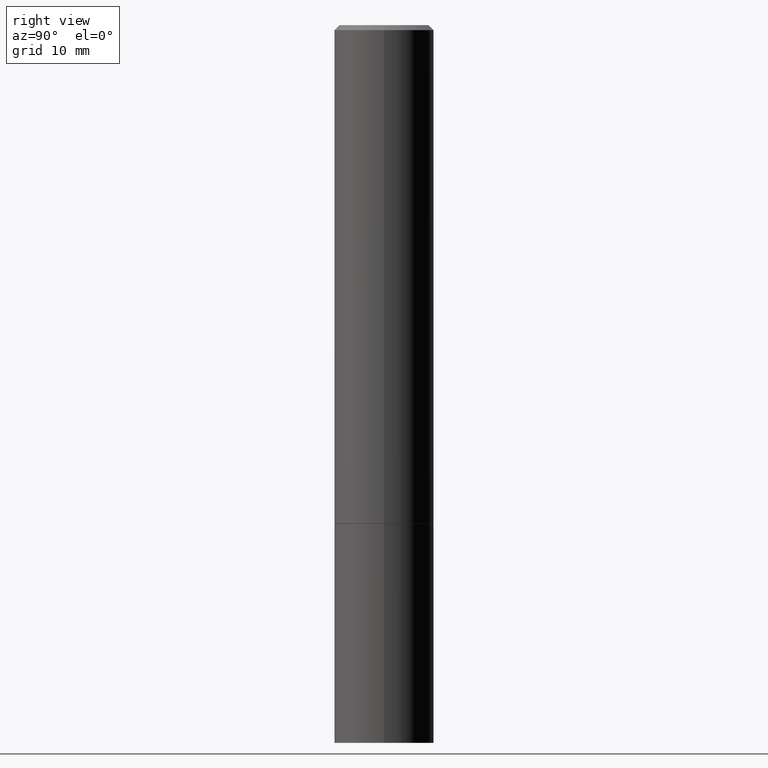
[diagram: clean part render]
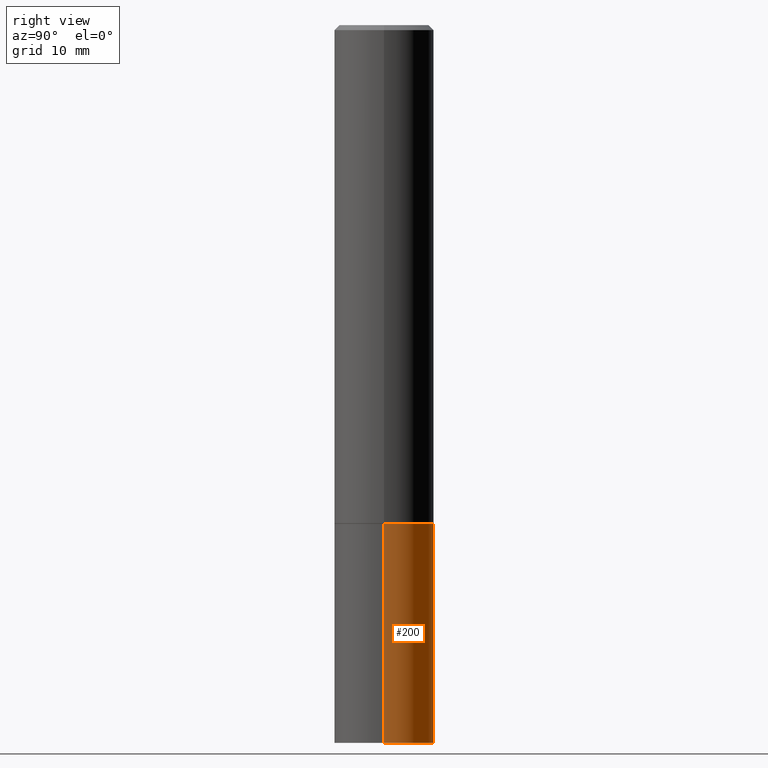
[diagram: same view with one face highlighted and labeled with its STEP entity id]
A machine part, right view. The second image highlights one B-rep face of the part: STEP entity #200.
In plain terms, the highlighted cylindrical surface (partial cylindrical patch) has radius 5 mm, axis along (-0, 0, 1).
Its self-contained STEP definition (entity closure, byte-faithful):
#13 = VERTEX_POINT ( 'NONE', #98 ) ;
#30 = ORIENTED_EDGE ( 'NONE', *, *, #74, .F. ) ;
#40 = CARTESIAN_POINT ( 'NONE',  ( 4.813905344975441835E-29, -6.872981015512731707E-15, -1.968500000000000139 ) ) ;
#41 = AXIS2_PLACEMENT_3D ( 'NONE', #160, #109, #194 ) ;
#47 = CARTESIAN_POINT ( 'NONE',  ( -0.1968500000000000250, -6.986263633954999297E-15, -1.968500000000000139 ) ) ;
#71 = AXIS2_PLACEMENT_3D ( 'NONE', #40, #357, #123 ) ;
#74 = EDGE_CURVE ( 'NONE', #113, #294, #185, .T. ) ;
#80 = DIRECTION ( 'NONE',  ( -2.445468806185136597E-29, 3.491481338843145583E-15, 1.000000000000000000 ) ) ;
#89 = CARTESIAN_POINT ( 'NONE',  ( -0.1968500000000000250, -6.986263633954999297E-15, -2.834600000000000009 ) ) ;
#92 = ORIENTED_EDGE ( 'NONE', *, *, #359, .F. ) ;
#98 = CARTESIAN_POINT ( 'NONE',  ( 0.1968500000000000250, -1.127154920618732249E-14, -2.834600000000000009 ) ) ;
#103 = CARTESIAN_POINT ( 'NONE',  ( 0.1968500000000000250, -8.247577218615273316E-15, -1.968500000000000139 ) ) ;
#104 = DIRECTION ( 'NONE',  ( 1.000000000000000000, -6.982962677686265922E-15, 4.876176775795935793E-29 ) ) ;
#109 = DIRECTION ( 'NONE',  ( -2.445468806185136597E-29, 3.491481338843145583E-15, 1.000000000000000000 ) ) ;
#112 = CARTESIAN_POINT ( 'NONE',  ( 0.1968500000000000250, -1.374596203102541608E-15, 9.598753983154300858E-30 ) ) ;
#113 = VERTEX_POINT ( 'NONE', #103 ) ;
#123 = DIRECTION ( 'NONE',  ( 1.000000000000000000, -6.982962677686267499E-15, 0.000000000000000000 ) ) ;
#126 = ORIENTED_EDGE ( 'NONE', *, *, #224, .T. ) ;
#133 = CIRCLE ( 'NONE', #41, 0.1968500000000000250 ) ;
#144 = DIRECTION ( 'NONE',  ( -2.445468806185136877E-29, 3.491481338843145188E-15, 1.000000000000000000 ) ) ;
#160 = CARTESIAN_POINT ( 'NONE',  ( 6.931925878012387517E-29, -9.896953003084780885E-15, -2.834600000000000009 ) ) ;
#174 = DIRECTION ( 'NONE',  ( -2.445468806185136877E-29, 3.491481338843145188E-15, 1.000000000000000000 ) ) ;
#177 = EDGE_LOOP ( 'NONE', ( #126, #292, #30, #92 ) ) ;
#185 = CIRCLE ( 'NONE', #71, 0.1968500000000000250 ) ;
#194 = DIRECTION ( 'NONE',  ( 1.000000000000000000, -6.982962677686267499E-15, 0.000000000000000000 ) ) ;
#198 = LINE ( 'NONE', #112, #297 ) ;
#199 = LINE ( 'NONE', #315, #291 ) ;
#200 = ADVANCED_FACE ( 'NONE', ( #286 ), #333, .T. ) ;
#224 = EDGE_CURVE ( 'NONE', #13, #345, #133, .T. ) ;
#232 = AXIS2_PLACEMENT_3D ( 'NONE', #311, #80, #104 ) ;
#286 = FACE_OUTER_BOUND ( 'NONE', #177, .T. ) ;
#291 = VECTOR ( 'NONE', #174, 39.37007874015748143 ) ;
#292 = ORIENTED_EDGE ( 'NONE', *, *, #362, .T. ) ;
#294 = VERTEX_POINT ( 'NONE', #47 ) ;
#297 = VECTOR ( 'NONE', #144, 39.37007874015748143 ) ;
#311 = CARTESIAN_POINT ( 'NONE',  ( 0.000000000000000000, 0.000000000000000000, 0.000000000000000000 ) ) ;
#315 = CARTESIAN_POINT ( 'NONE',  ( -0.1968500000000000250, 1.398703375343757393E-15, -9.682923725166783677E-30 ) ) ;
#333 = CYLINDRICAL_SURFACE ( 'NONE', #232, 0.1968500000000000250 ) ;
#345 = VERTEX_POINT ( 'NONE', #89 ) ;
#357 = DIRECTION ( 'NONE',  ( -2.445468806185136597E-29, 3.491481338843145583E-15, 1.000000000000000000 ) ) ;
#359 = EDGE_CURVE ( 'NONE', #13, #113, #198, .T. ) ;
#362 = EDGE_CURVE ( 'NONE', #345, #294, #199, .T. ) ;